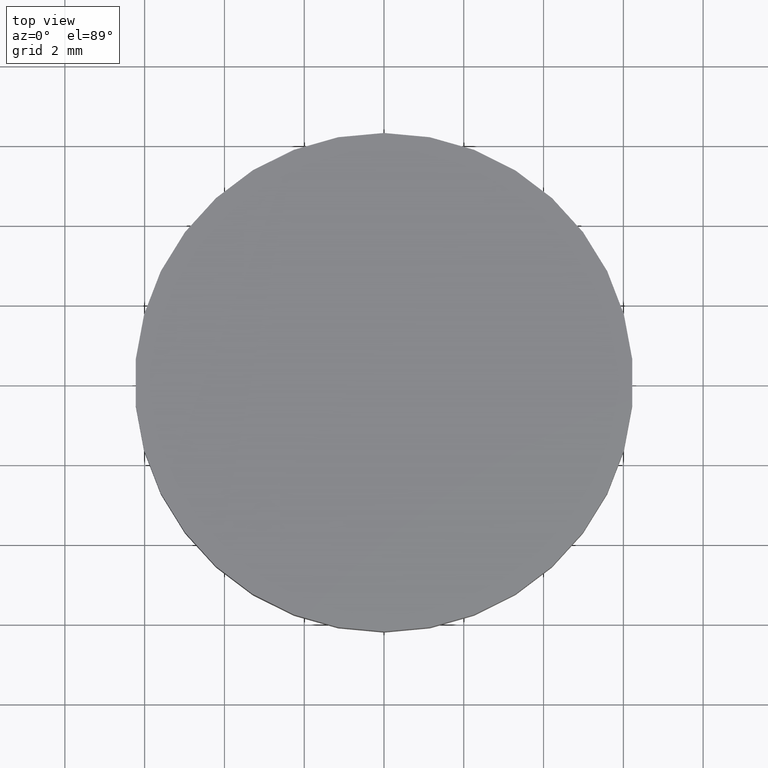
[diagram: clean part render]
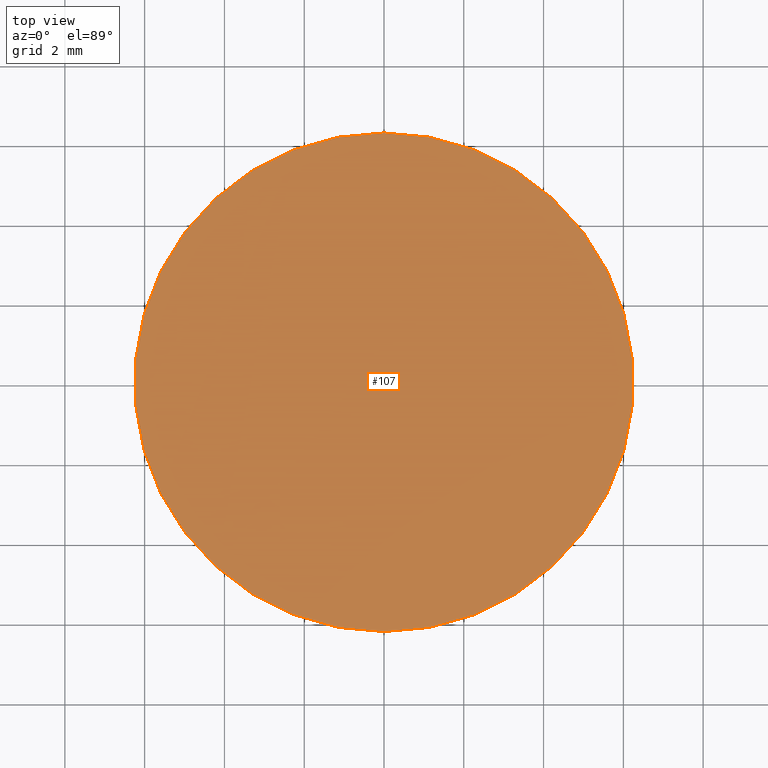
[diagram: same view with one face highlighted and labeled with its STEP entity id]
A machine part, top view. The second image highlights one B-rep face of the part: STEP entity #107.
In plain terms, the highlighted planar face has unit normal (0, 0, 1).
Its self-contained STEP definition (entity closure, byte-faithful):
#16 = EDGE_LOOP ( 'NONE', ( #935, #770 ) ) ;
#19 = AXIS2_PLACEMENT_3D ( 'NONE', #975, #380, #232 ) ;
#55 = DIRECTION ( 'NONE',  ( 0.000000000000000000, 0.000000000000000000, -1.000000000000000000 ) ) ;
#107 = ADVANCED_FACE ( 'NONE', ( #1057 ), #226, .T. ) ;
#127 = CARTESIAN_POINT ( 'NONE',  ( 0.000000000000000000, 0.000000000000000000, 5.000000000000000000 ) ) ;
#138 = EDGE_CURVE ( 'NONE', #191, #519, #542, .T. ) ;
#191 = VERTEX_POINT ( 'NONE', #470 ) ;
#226 = PLANE ( 'NONE',  #19 ) ;
#232 = DIRECTION ( 'NONE',  ( 1.000000000000000000, 0.000000000000000000, 0.000000000000000000 ) ) ;
#318 = AXIS2_PLACEMENT_3D ( 'NONE', #886, #635, #553 ) ;
#379 = DIRECTION ( 'NONE',  ( 0.000000000000000000, 1.000000000000000000, 0.000000000000000000 ) ) ;
#380 = DIRECTION ( 'NONE',  ( 0.000000000000000000, 0.000000000000000000, 1.000000000000000000 ) ) ;
#470 = CARTESIAN_POINT ( 'NONE',  ( 0.000000000000000000, 6.250000000000000000, 5.000000000000000000 ) ) ;
#519 = VERTEX_POINT ( 'NONE', #878 ) ;
#542 = CIRCLE ( 'NONE', #318, 6.250000000000000000 ) ;
#553 = DIRECTION ( 'NONE',  ( 0.000000000000000000, 1.000000000000000000, 0.000000000000000000 ) ) ;
#603 = EDGE_CURVE ( 'NONE', #519, #191, #629, .T. ) ;
#629 = CIRCLE ( 'NONE', #1070, 6.250000000000000000 ) ;
#635 = DIRECTION ( 'NONE',  ( 0.000000000000000000, 0.000000000000000000, -1.000000000000000000 ) ) ;
#770 = ORIENTED_EDGE ( 'NONE', *, *, #603, .F. ) ;
#878 = CARTESIAN_POINT ( 'NONE',  ( 7.654042494670957606E-16, -6.250000000000000000, 5.000000000000000000 ) ) ;
#886 = CARTESIAN_POINT ( 'NONE',  ( 0.000000000000000000, 0.000000000000000000, 5.000000000000000000 ) ) ;
#935 = ORIENTED_EDGE ( 'NONE', *, *, #138, .F. ) ;
#975 = CARTESIAN_POINT ( 'NONE',  ( 0.000000000000000000, 0.000000000000000000, 5.000000000000000000 ) ) ;
#1057 = FACE_OUTER_BOUND ( 'NONE', #16, .T. ) ;
#1070 = AXIS2_PLACEMENT_3D ( 'NONE', #127, #55, #379 ) ;